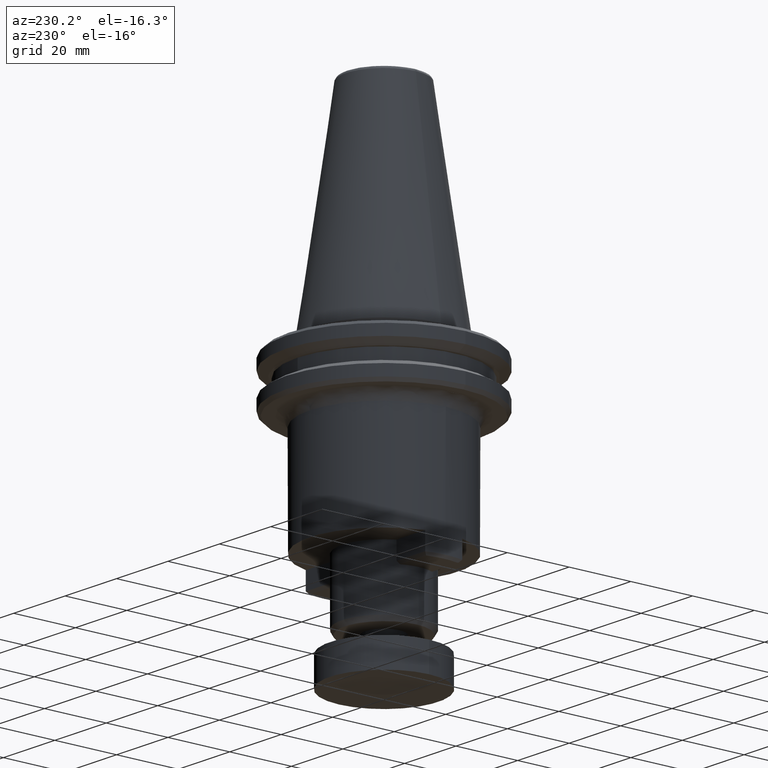
[diagram: clean part render]
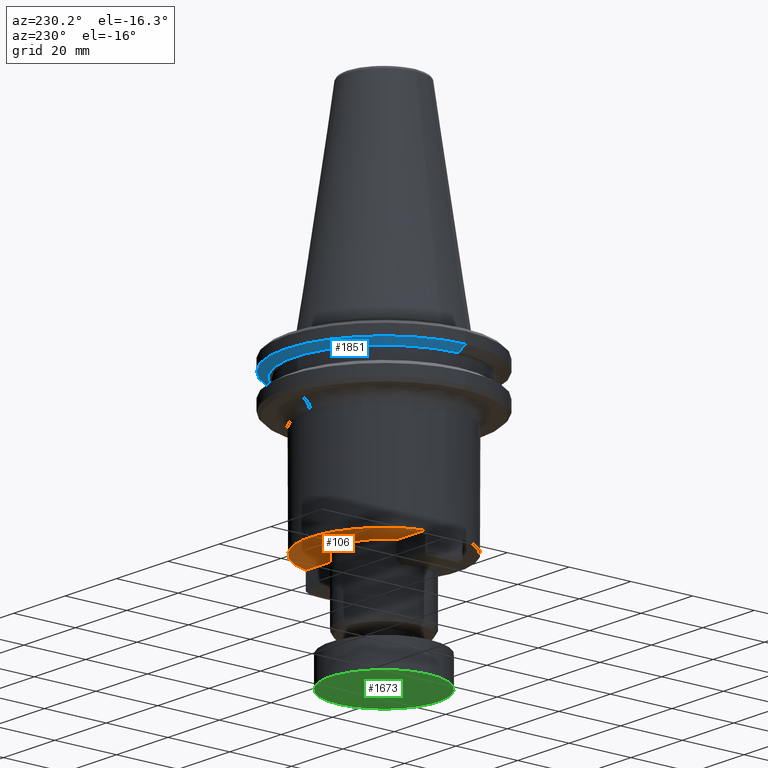
[diagram: same view with three faces highlighted in distinct colors, each labeled with its STEP entity id]
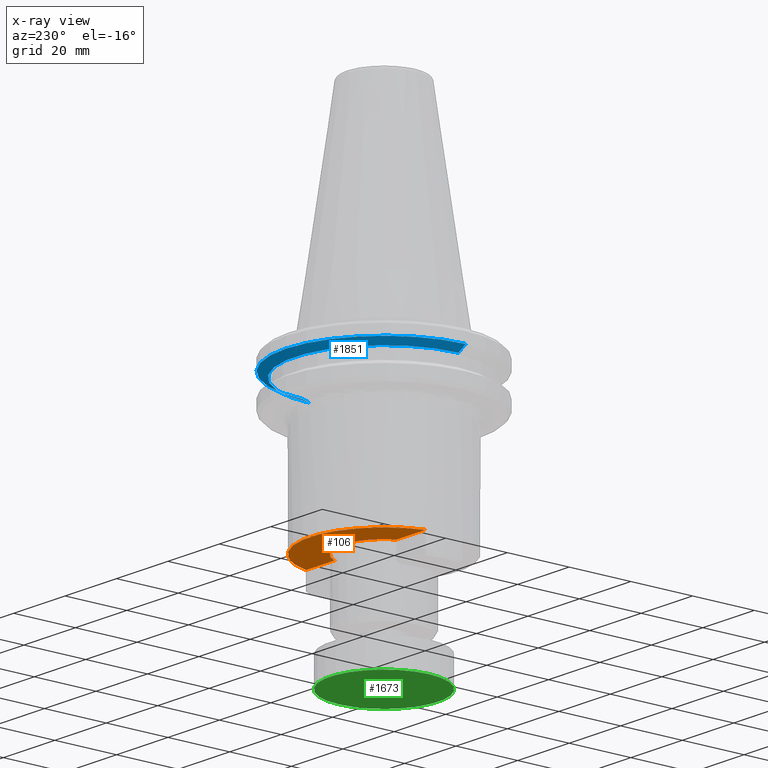
[diagram: x-ray of the same camera — body ghosted, the three highlighted faces saturated]
A machine part, auxiliary view with three faces highlighted in distinct colors.
The next image is the same camera in x-ray (body ghosted, the three faces saturated) — at least one of them is partly hidden behind the body in this view.
Their STEP definitions:

[orange] entity #106 — the highlighted planar face has unit normal (0, 0, -1).
#47 = DIRECTION ( 'NONE',  ( 0.0000000000000000000, 0.0000000000000000000, -1.000000000000000000 ) ) ;
#52 = VECTOR ( 'NONE', #1751, 1000.000000000000000 ) ;
#104 = LINE ( 'NONE', #2011, #52 ) ;
#106 = ADVANCED_FACE ( 'NONE', ( #299 ), #530, .T. ) ;
#299 = FACE_OUTER_BOUND ( 'NONE', #672, .T. ) ;
#402 = AXIS2_PLACEMENT_3D ( 'NONE', #1637, #419, #1824 ) ;
#419 = DIRECTION ( 'NONE',  ( -0.0000000000000000000, -0.0000000000000000000, 1.000000000000000000 ) ) ;
#471 = ORIENTED_EDGE ( 'NONE', *, *, #989, .F. ) ;
#516 = ORIENTED_EDGE ( 'NONE', *, *, #1812, .T. ) ;
#530 = PLANE ( 'NONE',  #833 ) ;
#531 = AXIS2_PLACEMENT_3D ( 'NONE', #879, #2199, #1085 ) ;
#564 = EDGE_CURVE ( 'NONE', #1615, #2028, #104, .T. ) ;
#672 = EDGE_LOOP ( 'NONE', ( #1081, #471, #1842, #516 ) ) ;
#833 = AXIS2_PLACEMENT_3D ( 'NONE', #1196, #47, #2369 ) ;
#879 = CARTESIAN_POINT ( 'NONE',  ( 0.0000000000000000000, 0.0000000000000000000, -54.99999999749999100 ) ) ;
#904 = CARTESIAN_POINT ( 'NONE',  ( 23.51675487800000000, 5.999999999800420100, -55.00000000000000000 ) ) ;
#989 = EDGE_CURVE ( 'NONE', #1597, #1615, #2326, .T. ) ;
#1001 = CARTESIAN_POINT ( 'NONE',  ( -23.23790007724068100, 6.000000000007398500, -54.99999999749999800 ) ) ;
#1035 = VERTEX_POINT ( 'NONE', #2156 ) ;
#1081 = ORIENTED_EDGE ( 'NONE', *, *, #564, .F. ) ;
#1085 = DIRECTION ( 'NONE',  ( -1.000000000000000000, 0.0000000000000000000, 0.0000000000000000000 ) ) ;
#1098 = LINE ( 'NONE', #904, #2133 ) ;
#1196 = CARTESIAN_POINT ( 'NONE',  ( 0.0000000000000000000, -1.590163186239792900E-014, -54.99999999749999100 ) ) ;
#1266 = EDGE_CURVE ( 'NONE', #1035, #1597, #1098, .T. ) ;
#1318 = CIRCLE ( 'NONE', #531, 13.50000000000000000 ) ;
#1597 = VERTEX_POINT ( 'NONE', #2428 ) ;
#1615 = VERTEX_POINT ( 'NONE', #1001 ) ;
#1637 = CARTESIAN_POINT ( 'NONE',  ( 0.0000000000000000000, 0.0000000000000000000, -54.99999999749999100 ) ) ;
#1751 = DIRECTION ( 'NONE',  ( 1.000000000000000000, -0.0000000000000000000, -0.0000000000000000000 ) ) ;
#1812 = EDGE_CURVE ( 'NONE', #1035, #2028, #1318, .T. ) ;
#1824 = DIRECTION ( 'NONE',  ( 1.000000000000000000, 0.0000000000000000000, 0.0000000000000000000 ) ) ;
#1842 = ORIENTED_EDGE ( 'NONE', *, *, #1266, .F. ) ;
#2011 = CARTESIAN_POINT ( 'NONE',  ( 23.51675487800000000, 6.000000000000000000, -55.00000000000000000 ) ) ;
#2028 = VERTEX_POINT ( 'NONE', #2077 ) ;
#2077 = CARTESIAN_POINT ( 'NONE',  ( -12.09338662234581600, 6.000000000102800400, -55.00000000197500300 ) ) ;
#2133 = VECTOR ( 'NONE', #2217, 1000.000000000000000 ) ;
#2156 = CARTESIAN_POINT ( 'NONE',  ( 12.09338662259635400, 5.999999999750524900, -55.00000000197500300 ) ) ;
#2199 = DIRECTION ( 'NONE',  ( -0.0000000000000000000, -0.0000000000000000000, 1.000000000000000000 ) ) ;
#2217 = DIRECTION ( 'NONE',  ( 1.000000000000000000, -0.0000000000000000000, -0.0000000000000000000 ) ) ;
#2326 = CIRCLE ( 'NONE', #402, 24.00000000000000000 ) ;
#2369 = DIRECTION ( 'NONE',  ( -1.000000000000000000, 0.0000000000000000000, -0.0000000000000000000 ) ) ;
#2428 = CARTESIAN_POINT ( 'NONE',  ( 23.23790007728624800, 5.999999999838321300, -54.99999999749999100 ) ) ;

[blue] entity #1851 — the highlighted conical surface has half-angle 60 deg.
#14 = LINE ( 'NONE', #570, #1695 ) ;
#49 = CIRCLE ( 'NONE', #1956, 28.94089653399999300 ) ;
#78 = EDGE_CURVE ( 'NONE', #957, #1556, #324, .T. ) ;
#86 = CARTESIAN_POINT ( 'NONE',  ( 0.0000000000000000000, 0.0000000000000000000, -7.578163357929284400 ) ) ;
#324 = CIRCLE ( 'NONE', #2359, 31.74999999970176700 ) ;
#389 = ORIENTED_EDGE ( 'NONE', *, *, #941, .T. ) ;
#428 = LINE ( 'NONE', #1369, #639 ) ;
#570 = CARTESIAN_POINT ( 'NONE',  ( 31.75000000012248700, 0.0000000000000000000, -7.578163357929284400 ) ) ;
#572 = CARTESIAN_POINT ( 'NONE',  ( 28.94089653399999300, 0.0000000000000000000, -9.200000000000001100 ) ) ;
#582 = CARTESIAN_POINT ( 'NONE',  ( 31.74999999970176700, 0.0000000000000000000, -7.578163358172185200 ) ) ;
#617 = EDGE_CURVE ( 'NONE', #936, #1843, #49, .T. ) ;
#639 = VECTOR ( 'NONE', #1726, 1000.000000000000000 ) ;
#668 = AXIS2_PLACEMENT_3D ( 'NONE', #86, #1496, #683 ) ;
#683 = DIRECTION ( 'NONE',  ( 1.000000000000000000, 0.0000000000000000000, 0.0000000000000000000 ) ) ;
#728 = DIRECTION ( 'NONE',  ( 0.8660254038213650600, 0.0000000000000000000, 0.4999999999360416100 ) ) ;
#749 = EDGE_CURVE ( 'NONE', #936, #1556, #14, .T. ) ;
#852 = CONICAL_SURFACE ( 'NONE', #668, 31.75000000012248700, 1.047197551270450600 ) ;
#936 = VERTEX_POINT ( 'NONE', #572 ) ;
#941 = EDGE_CURVE ( 'NONE', #1843, #957, #428, .T. ) ;
#957 = VERTEX_POINT ( 'NONE', #2126 ) ;
#1002 = ORIENTED_EDGE ( 'NONE', *, *, #617, .T. ) ;
#1053 = DIRECTION ( 'NONE',  ( 1.000000000000000000, 0.0000000000000000000, 0.0000000000000000000 ) ) ;
#1105 = EDGE_LOOP ( 'NONE', ( #1002, #389, #1717, #1136 ) ) ;
#1136 = ORIENTED_EDGE ( 'NONE', *, *, #749, .F. ) ;
#1162 = CARTESIAN_POINT ( 'NONE',  ( 0.0000000000000000000, 0.0000000000000000000, -7.578163358172185200 ) ) ;
#1294 = DIRECTION ( 'NONE',  ( -0.0000000000000000000, 0.0000000000000000000, -1.000000000000000000 ) ) ;
#1369 = CARTESIAN_POINT ( 'NONE',  ( -31.75000000012248700, 3.888253587307846700E-015, -7.578163357929284400 ) ) ;
#1496 = DIRECTION ( 'NONE',  ( 0.0000000000000000000, -0.0000000000000000000, 1.000000000000000000 ) ) ;
#1556 = VERTEX_POINT ( 'NONE', #582 ) ;
#1695 = VECTOR ( 'NONE', #728, 1000.000000000000000 ) ;
#1717 = ORIENTED_EDGE ( 'NONE', *, *, #78, .T. ) ;
#1726 = DIRECTION ( 'NONE',  ( -0.8660254038213650600, 1.060575238770128700E-016, 0.4999999999360416100 ) ) ;
#1836 = FACE_OUTER_BOUND ( 'NONE', #1105, .T. ) ;
#1843 = VERTEX_POINT ( 'NONE', #2350 ) ;
#1851 = ADVANCED_FACE ( 'NONE', ( #1836 ), #852, .T. ) ;
#1956 = AXIS2_PLACEMENT_3D ( 'NONE', #2082, #2065, #2059 ) ;
#2059 = DIRECTION ( 'NONE',  ( 1.000000000000000000, 0.0000000000000000000, 0.0000000000000000000 ) ) ;
#2065 = DIRECTION ( 'NONE',  ( 0.0000000000000000000, -0.0000000000000000000, 1.000000000000000000 ) ) ;
#2082 = CARTESIAN_POINT ( 'NONE',  ( 0.0000000000000000000, 0.0000000000000000000, -9.200000000000001100 ) ) ;
#2126 = CARTESIAN_POINT ( 'NONE',  ( -31.74999999970176700, 3.888253587274584300E-015, -7.578163358172185200 ) ) ;
#2350 = CARTESIAN_POINT ( 'NONE',  ( -28.94089653399999300, 3.716245608869053100E-015, -9.200000000000001100 ) ) ;
#2359 = AXIS2_PLACEMENT_3D ( 'NONE', #1162, #1294, #1053 ) ;

[green] entity #1673 — the highlighted planar face has unit normal (0, 0, -1).
#15 = DIRECTION ( 'NONE',  ( 0.0000000000000000000, 0.0000000000000000000, -1.000000000000000000 ) ) ;
#236 = DIRECTION ( 'NONE',  ( -0.0000000000000000000, -0.0000000000000000000, 1.000000000000000000 ) ) ;
#439 = ORIENTED_EDGE ( 'NONE', *, *, #882, .F. ) ;
#882 = EDGE_CURVE ( 'NONE', #1054, #2429, #1131, .T. ) ;
#1014 = CARTESIAN_POINT ( 'NONE',  ( 0.0000000000000000000, 17.50000000000000000, -90.00000000000000000 ) ) ;
#1051 = ORIENTED_EDGE ( 'NONE', *, *, #1059, .F. ) ;
#1054 = VERTEX_POINT ( 'NONE', #1237 ) ;
#1059 = EDGE_CURVE ( 'NONE', #2429, #1054, #1786, .T. ) ;
#1087 = AXIS2_PLACEMENT_3D ( 'NONE', #1452, #236, #1655 ) ;
#1131 = CIRCLE ( 'NONE', #2018, 17.50000000000000000 ) ;
#1194 = CARTESIAN_POINT ( 'NONE',  ( 17.50000000000000000, 0.0000000000000000000, -90.00000000000000000 ) ) ;
#1237 = CARTESIAN_POINT ( 'NONE',  ( -17.50000000000000000, 2.143131898507868200E-015, -90.00000000000000000 ) ) ;
#1415 = DIRECTION ( 'NONE',  ( -1.000000000000000000, 0.0000000000000000000, -0.0000000000000000000 ) ) ;
#1452 = CARTESIAN_POINT ( 'NONE',  ( 0.0000000000000000000, 0.0000000000000000000, -90.00000000000000000 ) ) ;
#1655 = DIRECTION ( 'NONE',  ( 1.000000000000000000, 0.0000000000000000000, 0.0000000000000000000 ) ) ;
#1673 = ADVANCED_FACE ( 'NONE', ( #2279 ), #2293, .T. ) ;
#1786 = CIRCLE ( 'NONE', #1087, 17.50000000000000000 ) ;
#1901 = AXIS2_PLACEMENT_3D ( 'NONE', #1014, #15, #1415 ) ;
#1995 = DIRECTION ( 'NONE',  ( 1.000000000000000000, 0.0000000000000000000, 0.0000000000000000000 ) ) ;
#2018 = AXIS2_PLACEMENT_3D ( 'NONE', #2167, #2270, #1995 ) ;
#2167 = CARTESIAN_POINT ( 'NONE',  ( 0.0000000000000000000, 0.0000000000000000000, -90.00000000000000000 ) ) ;
#2270 = DIRECTION ( 'NONE',  ( -0.0000000000000000000, -0.0000000000000000000, 1.000000000000000000 ) ) ;
#2279 = FACE_OUTER_BOUND ( 'NONE', #2402, .T. ) ;
#2293 = PLANE ( 'NONE',  #1901 ) ;
#2402 = EDGE_LOOP ( 'NONE', ( #1051, #439 ) ) ;
#2429 = VERTEX_POINT ( 'NONE', #1194 ) ;